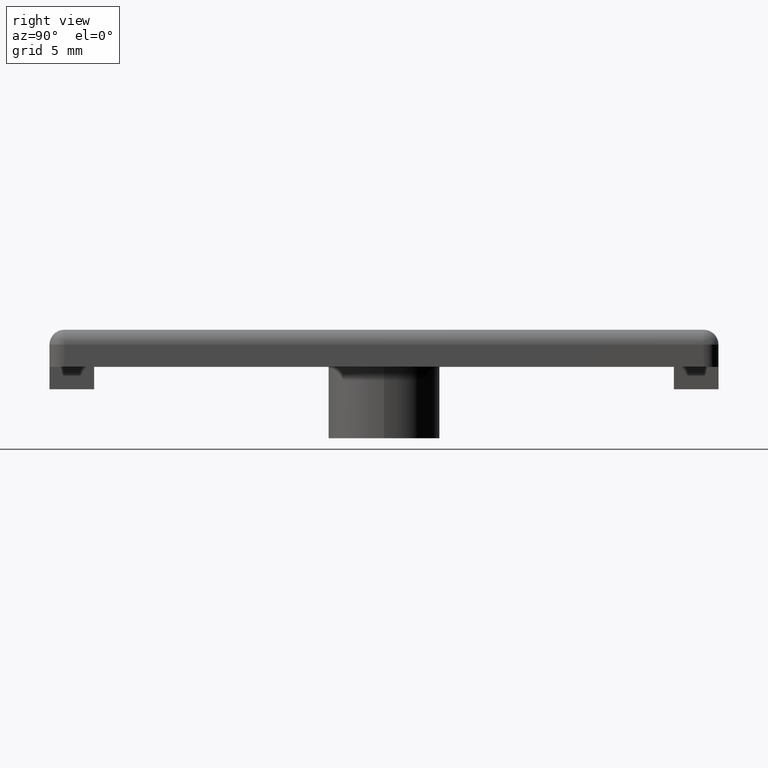
[diagram: clean part render]
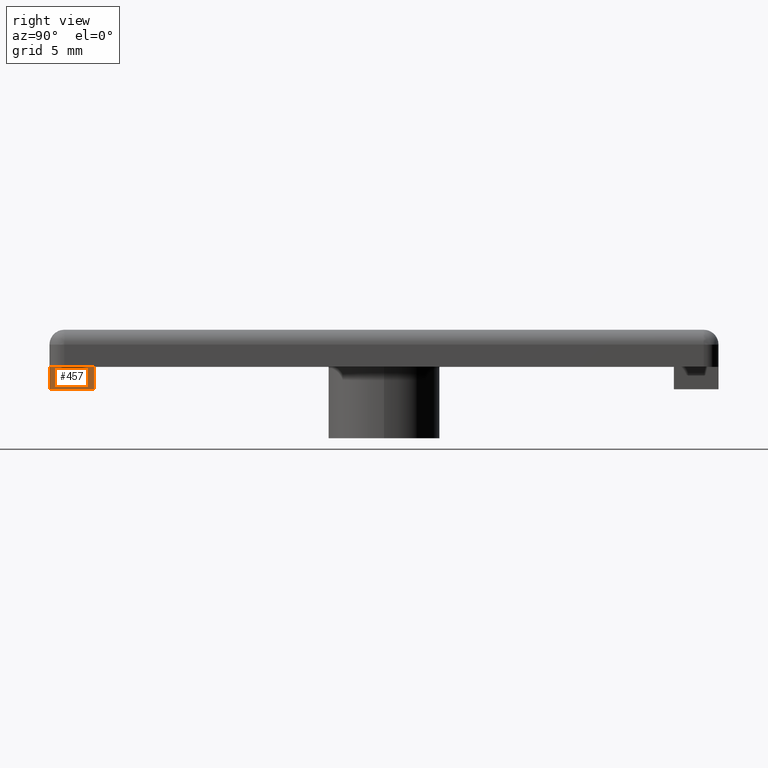
[diagram: same view with one face highlighted and labeled with its STEP entity id]
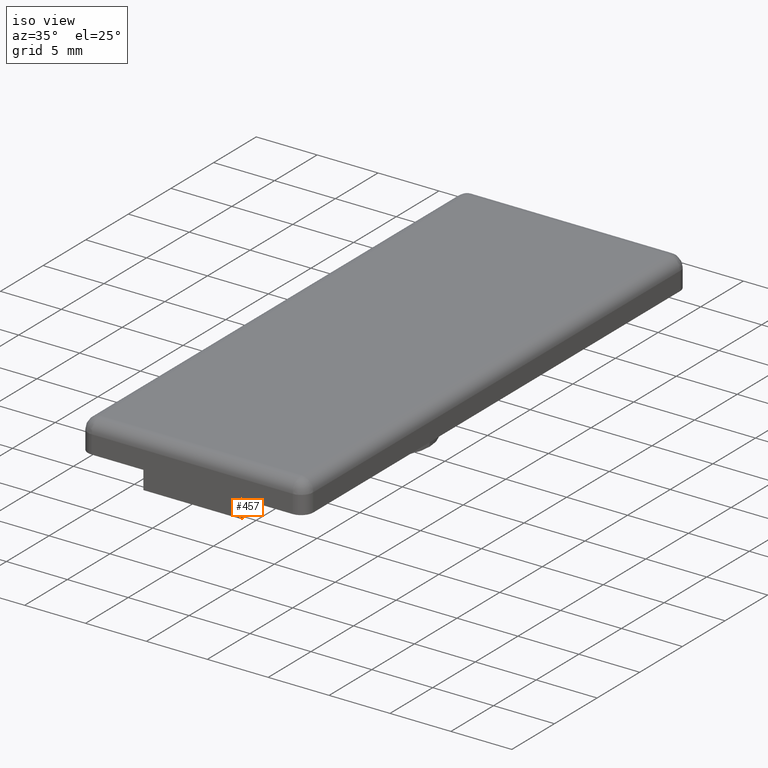
[diagram: same view with one face highlighted and labeled with its STEP entity id]
A machine part, right view. The second image highlights one B-rep face of the part: STEP entity #457.
A second angle (iso view) of the same face is appended — the face is thin or edge-on in the first view.
In plain terms, the highlighted planar face has unit normal (1, 0, 0).
Its self-contained STEP definition (entity closure, byte-faithful):
#37=FACE_OUTER_BOUND('',#68,.T.);
#68=EDGE_LOOP('',(#335,#336,#337,#338));
#98=LINE('',#677,#142);
#112=LINE('',#716,#156);
#114=LINE('',#720,#158);
#115=LINE('',#721,#159);
#142=VECTOR('',#538,2.99999999998818);
#156=VECTOR('',#568,1.5);
#158=VECTOR('',#572,1.5);
#159=VECTOR('',#573,2.99999999998818);
#207=VERTEX_POINT('',#674);
#208=VERTEX_POINT('',#676);
#225=VERTEX_POINT('',#715);
#226=VERTEX_POINT('',#719);
#247=EDGE_CURVE('',#208,#207,#98,.T.);
#266=EDGE_CURVE('',#208,#225,#112,.T.);
#268=EDGE_CURVE('',#207,#226,#114,.T.);
#269=EDGE_CURVE('',#225,#226,#115,.T.);
#335=ORIENTED_EDGE('',*,*,#266,.F.);
#336=ORIENTED_EDGE('',*,*,#247,.T.);
#337=ORIENTED_EDGE('',*,*,#268,.T.);
#338=ORIENTED_EDGE('',*,*,#269,.F.);
#441=PLANE('',#495);
#457=ADVANCED_FACE('',(#37),#441,.T.);
#495=AXIS2_PLACEMENT_3D('',#718,#570,#571);
#538=DIRECTION('',(0.,-1.,0.));
#568=DIRECTION('',(0.,0.,-1.));
#570=DIRECTION('center_axis',(1.,0.,0.));
#571=DIRECTION('ref_axis',(0.,0.,-1.));
#572=DIRECTION('',(0.,0.,-1.));
#573=DIRECTION('',(0.,-1.,0.));
#674=CARTESIAN_POINT('',(3.99999999998409,-22.49999999991,4.898587E-16));
#676=CARTESIAN_POINT('',(3.99999999998409,-19.4999999999218,4.898587E-16));
#677=CARTESIAN_POINT('',(3.99999999998409,-19.4999999999218,4.898587E-16));
#715=CARTESIAN_POINT('',(3.99999999998409,-19.4999999999218,-1.5));
#716=CARTESIAN_POINT('',(3.99999999998409,-19.4999999999218,4.898587E-16));
#718=CARTESIAN_POINT('Origin',(3.99999999998409,-19.4999999999218,4.898587E-16));
#719=CARTESIAN_POINT('',(3.99999999998409,-22.49999999991,-1.5));
#720=CARTESIAN_POINT('',(3.99999999998409,-22.49999999991,4.898587E-16));
#721=CARTESIAN_POINT('',(3.99999999998409,-19.4999999999218,-1.5));